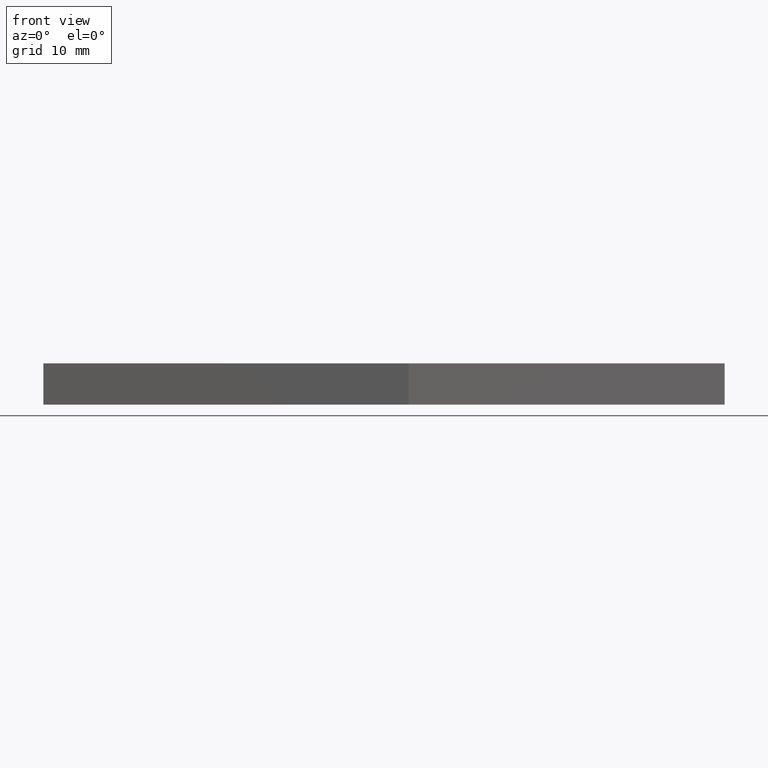
[diagram: clean part render]
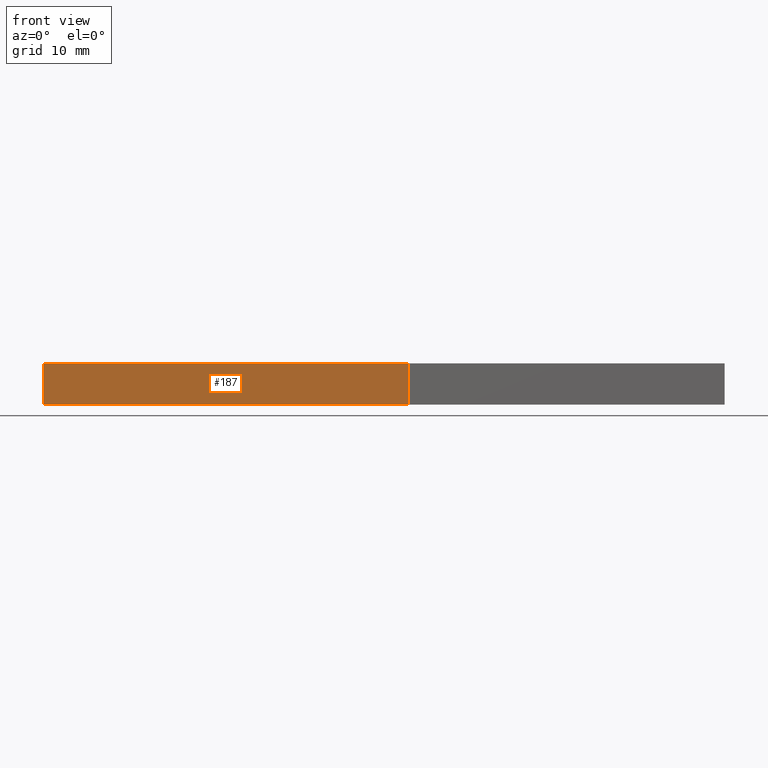
[diagram: same view with one face highlighted and labeled with its STEP entity id]
A machine part, front view. The second image highlights one B-rep face of the part: STEP entity #187.
In plain terms, the highlighted planar face has unit normal (0, 1, 0).
Its self-contained STEP definition (entity closure, byte-faithful):
#7=CARTESIAN_POINT('',(40.500028999837923,-6.749999999972943,6.0));
#8=VERTEX_POINT('',#7);
#9=CARTESIAN_POINT('',(40.500028999837923,-6.749999999972943,0.0));
#10=VERTEX_POINT('',#9);
#11=CARTESIAN_POINT('',(40.500028999837923,-6.749999999972943,6.0));
#12=DIRECTION('',(0.0,0.0,-1.0));
#13=VECTOR('',#12,6.0);
#14=LINE('',#11,#13);
#15=EDGE_CURVE('',#8,#10,#14,.T.);
#141=CARTESIAN_POINT('',(-12.499999999949978,-6.749999999972943,0.0));
#142=VERTEX_POINT('',#141);
#149=CARTESIAN_POINT('',(-12.499999999949978,-6.749999999972943,6.0));
#150=VERTEX_POINT('',#149);
#151=CARTESIAN_POINT('',(-12.499999999949978,-6.749999999972943,6.0));
#152=DIRECTION('',(0.0,0.0,-1.0));
#153=VECTOR('',#152,6.0);
#154=LINE('',#151,#153);
#155=EDGE_CURVE('',#150,#142,#154,.T.);
#166=CARTESIAN_POINT('',(-12.499999999949978,-6.749999999972943,6.0));
#167=DIRECTION('',(0.0,1.0,0.0));
#168=DIRECTION('',(1.0,0.0,0.0));
#169=AXIS2_PLACEMENT_3D('',#166,#167,#168);
#170=PLANE('',#169);
#171=ORIENTED_EDGE('',*,*,#155,.T.);
#172=CARTESIAN_POINT('',(-12.499999999949978,-6.749999999972943,0.0));
#173=DIRECTION('',(1.0,0.0,0.0));
#174=VECTOR('',#173,53.000028999788050);
#175=LINE('',#172,#174);
#176=EDGE_CURVE('',#142,#10,#175,.T.);
#177=ORIENTED_EDGE('',*,*,#176,.T.);
#178=ORIENTED_EDGE('',*,*,#15,.F.);
#179=CARTESIAN_POINT('',(-12.499999999949978,-6.749999999972943,6.0));
#180=DIRECTION('',(1.0,0.0,0.0));
#181=VECTOR('',#180,53.000028999788050);
#182=LINE('',#179,#181);
#183=EDGE_CURVE('',#150,#8,#182,.T.);
#184=ORIENTED_EDGE('',*,*,#183,.F.);
#185=EDGE_LOOP('',(#171,#177,#178,#184));
#186=FACE_OUTER_BOUND('',#185,.T.);
#187=ADVANCED_FACE('',(#186),#170,.F.);